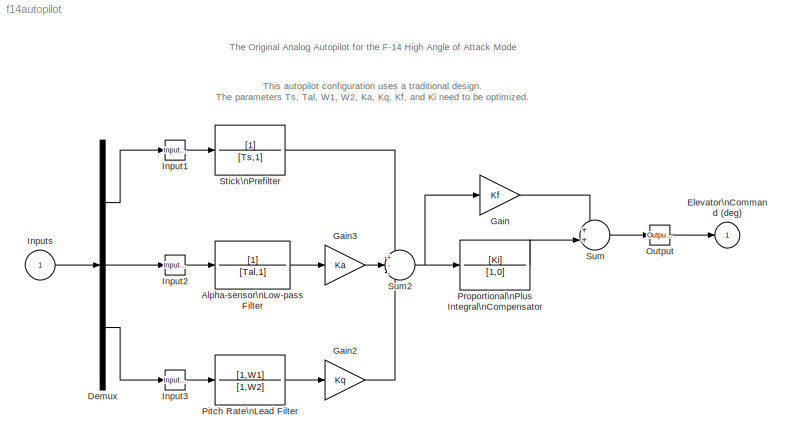
MODEL f14autopilot
KIND model
BLOCK [TransferFcn] Alpha-sensor\nLow-pass Filter
  Denominator = [Tal,1]
  MaskIconFrame = on
  MaskIconOpaque = on
  MaskIconRotate = none
  MaskIconUnits = autoscale
BLOCK [Demux] Demux
  Outputs = 3
  Ports = [1, 3]
BLOCK [Outport] Elevator\nCommand (deg)
  BusOutputAsStruct = off
  IconDisplay = Port number
  InitialOutput = 0
BLOCK [Gain] Gain
  Gain = Kf
BLOCK [Gain] Gain2
  Gain = Kq
  MaskIconFrame = on
  MaskIconOpaque = on
  MaskIconRotate = none
  MaskIconUnits = autoscale
BLOCK [Gain] Gain3
  Gain = Ka
  MaskIconFrame = on
  MaskIconOpaque = on
  MaskIconRotate = none
  MaskIconUnits = autoscale
BLOCK [Reference] Input1  REF=slctrlobsolete/Input Point  (lib defined in mdl_5c8d881fcced)
  Ports = [1, 1]
  ShowPortLabels = on
  SourceBlock = slctrlobsolete/Input Point
  SourceType = InputPoint
BLOCK [Reference] Input2  REF=slctrlobsolete/Input Point  (lib defined in mdl_5c8d881fcced)
  Ports = [1, 1]
  ShowPortLabels = on
  SourceBlock = slctrlobsolete/Input Point
  SourceType = InputPoint
BLOCK [Reference] Input3  REF=slctrlobsolete/Input Point  (lib defined in mdl_5c8d881fcced)
  Ports = [1, 1]
  ShowPortLabels = on
  SourceBlock = slctrlobsolete/Input Point
  SourceType = InputPoint
BLOCK [Inport] Inputs
  IconDisplay = Port number
  LatchInput = off
  Port = 1
  PortDimensions = 3
BLOCK [Reference] Output  REF=slctrlobsolete/Output Point  (lib defined in mdl_5c8d881fcced)
  Ports = [1, 1]
  ShowPortLabels = on
  SourceBlock = slctrlobsolete/Output Point
  SourceType = OutputPoint
BLOCK [TransferFcn] Pitch Rate\nLead Filter
  Denominator = [1,W2]
  MaskIconFrame = on
  MaskIconOpaque = on
  MaskIconRotate = none
  MaskIconUnits = autoscale
  Numerator = [1,W1]
BLOCK [TransferFcn] Proportional\nPlus Integral\nCompensator
  Denominator = [1,0]
  Numerator = [Ki]
BLOCK [TransferFcn] Stick\nPrefilter
  Denominator = [Ts,1]
BLOCK [Sum] Sum
  IconShape = round
  Inputs = 2
  Ports = [2, 1]
BLOCK [Sum] Sum2
  IconShape = round
  Inputs = +--
  Ports = [3, 1]
ANNOTATION (root): The Original Analog Autopilot for the F-14 High Angle of Attack Mode\n
ANNOTATION (root): This autopilot configuration uses a traditional design.\nThe parameters Ts, Tal, W1, W2, Ka, Kq, Kf, and Ki need to be optimized.
LINE Alpha-sensor\nLow-pass Filter:1 -> Gain3:1
LINE Demux:1 -> Input1:1
LINE Demux:2 -> Input2:1
LINE Demux:3 -> Input3:1
LINE Gain2:1 -> Sum2:3
LINE Gain3:1 -> Sum2:2
LINE Gain:1 -> Sum:1
LINE Input1:1 -> Stick\nPrefilter:1
LINE Input2:1 -> Alpha-sensor\nLow-pass Filter:1
LINE Input3:1 -> Pitch Rate\nLead Filter:1
LINE Inputs:1 -> Demux:1
LINE Output:1 -> Elevator\nCommand (deg):1
LINE Pitch Rate\nLead Filter:1 -> Gain2:1
LINE Proportional\nPlus Integral\nCompensator:1 -> Sum:2
LINE Stick\nPrefilter:1 -> Sum2:1
NET Sum2:1 -> Gain:1, Proportional\nPlus Integral\nCompensator:1
LINE Sum:1 -> Output:1
note: NET lines group one-source signal fan-out (src -> all destinations, sorted); 1:1 wires keep LINE
